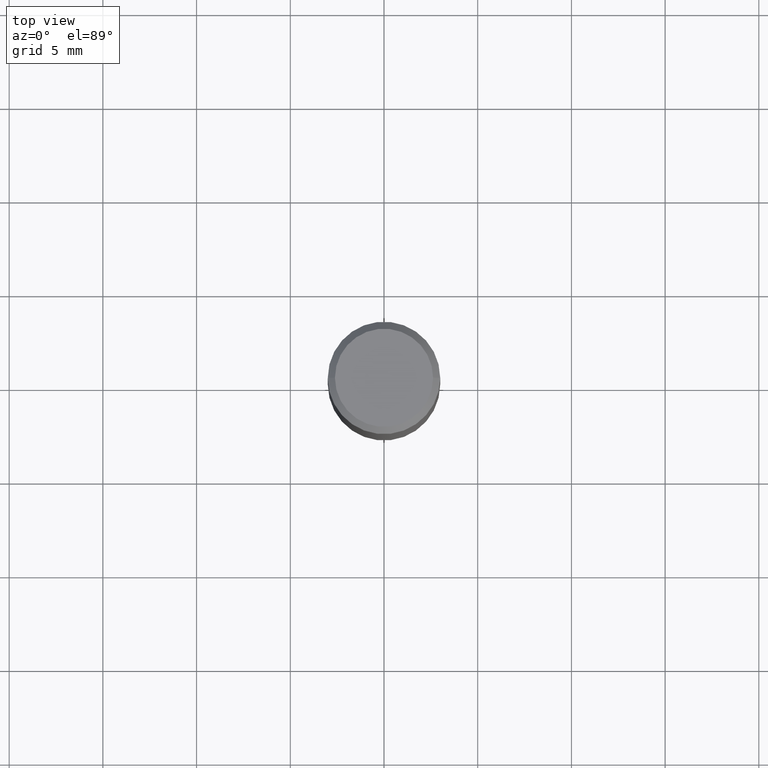
[diagram: clean part render]
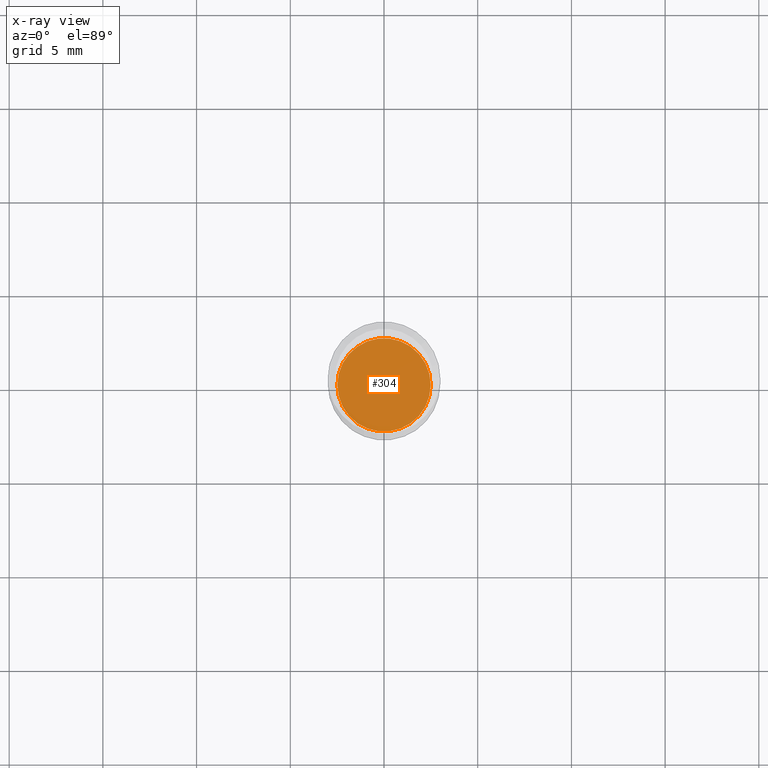
[diagram: x-ray — body ghosted, one internal face saturated and labeled with its STEP entity id]
A machine part, top view, then the same camera in x-ray: the body is ghosted and one INTERNAL B-rep face — a face not visible from any outside direction — is saturated and labeled: STEP entity #304.
In plain terms, the highlighted planar face has unit normal (-0, 0, 1).
Its self-contained STEP definition (entity closure, byte-faithful):
#2 = ORIENTED_EDGE ( 'NONE', *, *, #24, .F. ) ;
#20 = CARTESIAN_POINT ( 'NONE',  ( 2.127802408261687814E-29, -3.037937912927421995E-15, -0.8701000000000002066 ) ) ;
#24 = EDGE_CURVE ( 'NONE', #392, #359, #60, .T. ) ;
#60 = CIRCLE ( 'NONE', #369, 0.09794999999999999540 ) ;
#65 = CARTESIAN_POINT ( 'NONE',  ( 2.127802408261687534E-29, -3.037937912927421601E-15, -0.8701000000000000956 ) ) ;
#76 = EDGE_CURVE ( 'NONE', #359, #392, #148, .T. ) ;
#79 = ORIENTED_EDGE ( 'NONE', *, *, #76, .F. ) ;
#148 = CIRCLE ( 'NONE', #156, 0.09794999999999999540 ) ;
#156 = AXIS2_PLACEMENT_3D ( 'NONE', #192, #337, #370 ) ;
#192 = CARTESIAN_POINT ( 'NONE',  ( 2.127802408261687814E-29, -3.037937912927421995E-15, -0.8701000000000002066 ) ) ;
#202 = DIRECTION ( 'NONE',  ( -2.438088387897960049E-29, 3.491481338843145188E-15, 1.000000000000000000 ) ) ;
#205 = CARTESIAN_POINT ( 'NONE',  ( -0.09794999999999999540, -2.339312076076292793E-15, -0.8701000000000002066 ) ) ;
#225 = DIRECTION ( 'NONE',  ( -2.445468806185136597E-29, 3.491481338843145583E-15, 1.000000000000000000 ) ) ;
#240 = FACE_OUTER_BOUND ( 'NONE', #296, .T. ) ;
#296 = EDGE_LOOP ( 'NONE', ( #2, #79 ) ) ;
#304 = ADVANCED_FACE ( 'NONE', ( #240 ), #387, .F. ) ;
#329 = DIRECTION ( 'NONE',  ( 1.000000000000000000, -6.982962677686265922E-15, 4.876176775795935793E-29 ) ) ;
#337 = DIRECTION ( 'NONE',  ( -2.445468806185136597E-29, 3.491481338843145583E-15, 1.000000000000000000 ) ) ;
#359 = VERTEX_POINT ( 'NONE', #205 ) ;
#369 = AXIS2_PLACEMENT_3D ( 'NONE', #20, #225, #445 ) ;
#370 = DIRECTION ( 'NONE',  ( 1.000000000000000000, -6.982962677686265133E-15, 0.000000000000000000 ) ) ;
#387 = PLANE ( 'NONE',  #449 ) ;
#392 = VERTEX_POINT ( 'NONE', #425 ) ;
#425 = CARTESIAN_POINT ( 'NONE',  ( 0.09794999999999999540, -3.721919107206791548E-15, -0.8701000000000002066 ) ) ;
#445 = DIRECTION ( 'NONE',  ( 1.000000000000000000, -6.982962677686265133E-15, 0.000000000000000000 ) ) ;
#449 = AXIS2_PLACEMENT_3D ( 'NONE', #65, #202, #329 ) ;